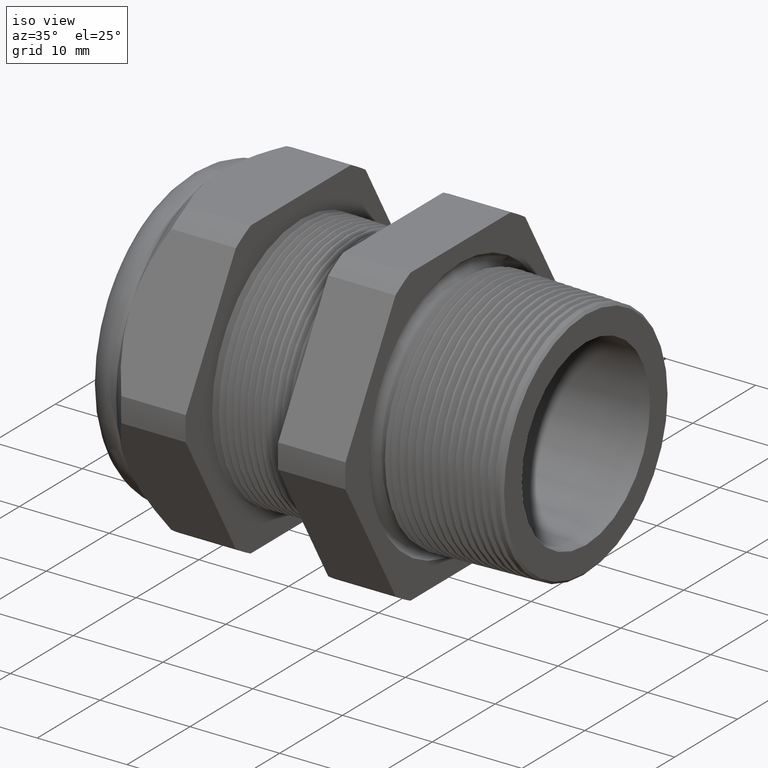
[diagram: clean part render]
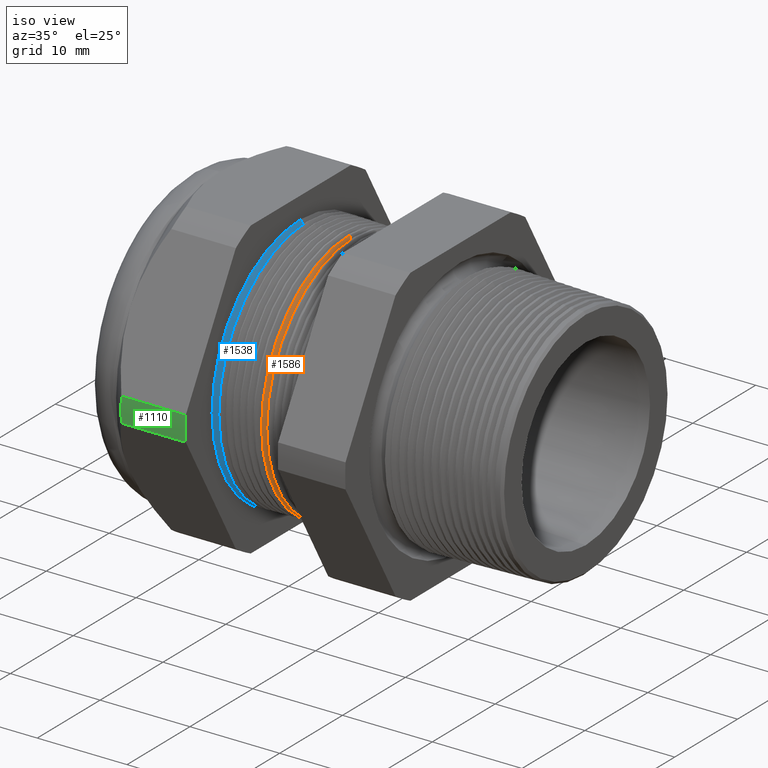
[diagram: same view with three faces highlighted in distinct colors, each labeled with its STEP entity id]
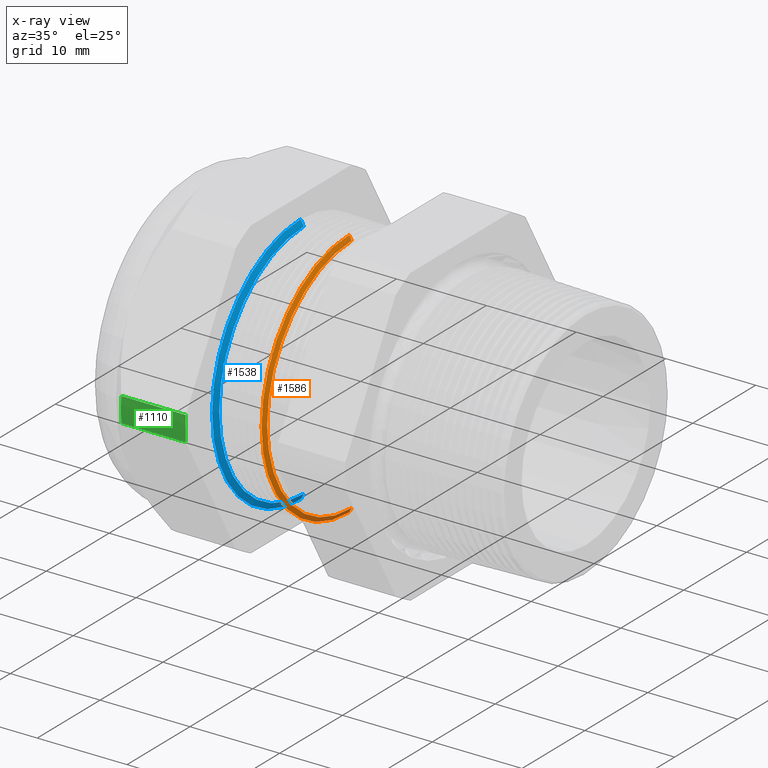
[diagram: x-ray of the same camera — body ghosted, the three highlighted faces saturated]
A machine part, iso view with three faces highlighted in distinct colors.
The next image is the same camera in x-ray (body ghosted, the three faces saturated) — at least one of them is partly hidden behind the body in this view.
Their STEP definitions:

[orange] entity #1586 — the highlighted conical surface has half-angle 61.5 deg.
#394 = VERTEX_POINT ( 'NONE', #2933 ) ;
#397 = VERTEX_POINT ( 'NONE', #2927 ) ;
#399 = EDGE_CURVE ( 'NONE', #410, #397, #2926, .T. ) ;
#409 = VERTEX_POINT ( 'NONE', #2964 ) ;
#410 = VERTEX_POINT ( 'NONE', #2963 ) ;
#476 = EDGE_CURVE ( 'NONE', #409, #394, #3107, .T. ) ;
#1053 = EDGE_CURVE ( 'NONE', #397, #394, #4195, .T. ) ;
#1586 = ADVANCED_FACE ( 'NONE', ( #5153 ), #5148, .T. ) ;
#1587 = EDGE_LOOP ( 'NONE', ( #1588, #1589, #1591, #1592 ) ) ;
#1588 = ORIENTED_EDGE ( 'NONE', *, *, #476, .F. ) ;
#1589 = ORIENTED_EDGE ( 'NONE', *, *, #1590, .F. ) ;
#1590 = EDGE_CURVE ( 'NONE', #410, #409, #5142, .T. ) ;
#1591 = ORIENTED_EDGE ( 'NONE', *, *, #399, .T. ) ;
#1592 = ORIENTED_EDGE ( 'NONE', *, *, #1053, .T. ) ;
#2923 = DIRECTION ( 'NONE',  ( -0.4771587602596191200, 0.0000000000000000000, 0.8788171126619595000 ) ) ;
#2924 = VECTOR ( 'NONE', #2923, 39.37007874015748100 ) ;
#2925 = CARTESIAN_POINT ( 'NONE',  ( -0.8003149606299214700, 0.0000000000000000000, 0.5550000000000000500 ) ) ;
#2926 = LINE ( 'NONE', #2925, #2924 ) ;
#2927 = CARTESIAN_POINT ( 'NONE',  ( -0.7972861607460501900, 0.0000000000000000000, 0.5494216445542645700 ) ) ;
#2933 = CARTESIAN_POINT ( 'NONE',  ( -0.7972861607460501900, 6.729599222564897900E-017, -0.5494216445542646800 ) ) ;
#2963 = CARTESIAN_POINT ( 'NONE',  ( -0.7865405736958173100, 0.0000000000000000000, 0.5296307351718083600 ) ) ;
#2964 = CARTESIAN_POINT ( 'NONE',  ( -0.7865405736958173100, 6.607290214719347400E-017, -0.5296307351718083600 ) ) ;
#3104 = DIRECTION ( 'NONE',  ( -0.4771587602596191200, 1.076240564057387800E-016, -0.8788171126619595000 ) ) ;
#3105 = VECTOR ( 'NONE', #3104, 39.37007874015748100 ) ;
#3106 = CARTESIAN_POINT ( 'NONE',  ( -0.8003149606299214700, 6.796789735267811300E-017, -0.5550000000000000500 ) ) ;
#3107 = LINE ( 'NONE', #3106, #3105 ) ;
#4192 = DIRECTION ( 'NONE',  ( 0.0000000000000000000, 0.0000000000000000000, 1.000000000000000000 ) ) ;
#4193 = DIRECTION ( 'NONE',  ( 1.000000000000000000, 0.0000000000000000000, 0.0000000000000000000 ) ) ;
#4194 = AXIS2_PLACEMENT_3D ( 'NONE', #4200, #4193, #4192 ) ;
#4195 = CIRCLE ( 'NONE', #4194, 0.5494216445542645700 ) ;
#4200 = CARTESIAN_POINT ( 'NONE',  ( -0.7972861607460501900, 0.0000000000000000000, 0.0000000000000000000 ) ) ;
#5139 = DIRECTION ( 'NONE',  ( 0.0000000000000000000, 0.0000000000000000000, -1.000000000000000000 ) ) ;
#5140 = DIRECTION ( 'NONE',  ( 1.000000000000000000, 0.0000000000000000000, 0.0000000000000000000 ) ) ;
#5141 = AXIS2_PLACEMENT_3D ( 'NONE', #5147, #5140, #5139 ) ;
#5142 = CIRCLE ( 'NONE', #5141, 0.5296307351718083600 ) ;
#5143 = DIRECTION ( 'NONE',  ( 0.0000000000000000000, 0.0000000000000000000, 1.000000000000000000 ) ) ;
#5144 = DIRECTION ( 'NONE',  ( -1.000000000000000000, 0.0000000000000000000, 0.0000000000000000000 ) ) ;
#5145 = CARTESIAN_POINT ( 'NONE',  ( -0.8003149606299214700, 0.0000000000000000000, 0.0000000000000000000 ) ) ;
#5146 = AXIS2_PLACEMENT_3D ( 'NONE', #5145, #5144, #5143 ) ;
#5147 = CARTESIAN_POINT ( 'NONE',  ( -0.7865405736958173100, 0.0000000000000000000, 0.0000000000000000000 ) ) ;
#5148 = CONICAL_SURFACE ( 'NONE', #5146, 0.5550000000000000500, 1.073377489976500500 ) ;
#5153 = FACE_OUTER_BOUND ( 'NONE', #1587, .T. ) ;

[blue] entity #1538 — the highlighted conical surface has half-angle 61.5 deg.
#564 = VERTEX_POINT ( 'NONE', #3300 ) ;
#565 = VERTEX_POINT ( 'NONE', #3299 ) ;
#628 = EDGE_CURVE ( 'NONE', #564, #629, #3373, .T. ) ;
#629 = VERTEX_POINT ( 'NONE', #3425 ) ;
#632 = VERTEX_POINT ( 'NONE', #3419 ) ;
#634 = EDGE_CURVE ( 'NONE', #565, #632, #3418, .T. ) ;
#1368 = EDGE_CURVE ( 'NONE', #632, #629, #4896, .T. ) ;
#1519 = ORIENTED_EDGE ( 'NONE', *, *, #634, .T. ) ;
#1520 = ORIENTED_EDGE ( 'NONE', *, *, #1368, .T. ) ;
#1538 = ADVANCED_FACE ( 'NONE', ( #5081 ), #5080, .T. ) ;
#1539 = EDGE_LOOP ( 'NONE', ( #1540, #1541, #1519, #1520 ) ) ;
#1540 = ORIENTED_EDGE ( 'NONE', *, *, #628, .F. ) ;
#1541 = ORIENTED_EDGE ( 'NONE', *, *, #1542, .F. ) ;
#1542 = EDGE_CURVE ( 'NONE', #565, #564, #5075, .T. ) ;
#3299 = CARTESIAN_POINT ( 'NONE',  ( -0.9965405736958173900, 0.0000000000000000000, 0.5296307351718083600 ) ) ;
#3300 = CARTESIAN_POINT ( 'NONE',  ( -0.9965405736958173900, 6.641447790424978500E-017, -0.5296307351718083600 ) ) ;
#3373 = LINE ( 'NONE', #3428, #3427 ) ;
#3415 = DIRECTION ( 'NONE',  ( -0.4771587602596191200, 0.0000000000000000000, 0.8788171126619595000 ) ) ;
#3416 = VECTOR ( 'NONE', #3415, 39.37007874015748100 ) ;
#3417 = CARTESIAN_POINT ( 'NONE',  ( -1.010314960629921500, 0.0000000000000000000, 0.5550000000000000500 ) ) ;
#3418 = LINE ( 'NONE', #3417, #3416 ) ;
#3419 = CARTESIAN_POINT ( 'NONE',  ( -1.010314960629921500, 0.0000000000000000000, 0.5550000000000000500 ) ) ;
#3425 = CARTESIAN_POINT ( 'NONE',  ( -1.010314960629921500, 6.796789735267811300E-017, -0.5550000000000000500 ) ) ;
#3426 = DIRECTION ( 'NONE',  ( -0.4771587602596191200, 1.076240564057387800E-016, -0.8788171126619595000 ) ) ;
#3427 = VECTOR ( 'NONE', #3426, 39.37007874015748100 ) ;
#3428 = CARTESIAN_POINT ( 'NONE',  ( -1.010314960629921500, 6.796789735267811300E-017, -0.5550000000000000500 ) ) ;
#4892 = DIRECTION ( 'NONE',  ( 0.0000000000000000000, 0.0000000000000000000, -1.000000000000000000 ) ) ;
#4893 = DIRECTION ( 'NONE',  ( 1.000000000000000000, 0.0000000000000000000, 0.0000000000000000000 ) ) ;
#4894 = CARTESIAN_POINT ( 'NONE',  ( -1.010314960629921500, 0.0000000000000000000, 0.0000000000000000000 ) ) ;
#4895 = AXIS2_PLACEMENT_3D ( 'NONE', #4894, #4893, #4892 ) ;
#4896 = CIRCLE ( 'NONE', #4895, 0.5550000000000000500 ) ;
#5072 = DIRECTION ( 'NONE',  ( 0.0000000000000000000, 0.0000000000000000000, -1.000000000000000000 ) ) ;
#5073 = DIRECTION ( 'NONE',  ( 1.000000000000000000, 0.0000000000000000000, 0.0000000000000000000 ) ) ;
#5074 = AXIS2_PLACEMENT_3D ( 'NONE', #5079, #5073, #5072 ) ;
#5075 = CIRCLE ( 'NONE', #5074, 0.5296307351718083600 ) ;
#5076 = DIRECTION ( 'NONE',  ( 0.0000000000000000000, 0.0000000000000000000, 1.000000000000000000 ) ) ;
#5077 = DIRECTION ( 'NONE',  ( -1.000000000000000000, 0.0000000000000000000, 0.0000000000000000000 ) ) ;
#5078 = AXIS2_PLACEMENT_3D ( 'NONE', #5085, #5077, #5076 ) ;
#5079 = CARTESIAN_POINT ( 'NONE',  ( -0.9965405736958173900, 0.0000000000000000000, 0.0000000000000000000 ) ) ;
#5080 = CONICAL_SURFACE ( 'NONE', #5078, 0.5550000000000000500, 1.073377489976500500 ) ;
#5081 = FACE_OUTER_BOUND ( 'NONE', #1539, .T. ) ;
#5085 = CARTESIAN_POINT ( 'NONE',  ( -1.010314960629921500, 0.0000000000000000000, 0.0000000000000000000 ) ) ;

[green] entity #1110 — the highlighted cylindrical surface (partial cylindrical patch) has radius 18.3261 mm, axis along (-1, 0, 0).
#1110 = ADVANCED_FACE ( 'NONE', ( #4328 ), #4327, .T. ) ;
#1111 = EDGE_LOOP ( 'NONE', ( #1167, #1171, #1173, #1174 ) ) ;
#1167 = ORIENTED_EDGE ( 'NONE', *, *, #1168, .T. ) ;
#1168 = EDGE_CURVE ( 'NONE', #1169, #1170, #4484, .T. ) ;
#1169 = VERTEX_POINT ( 'NONE', #4480 ) ;
#1170 = VERTEX_POINT ( 'NONE', #4479 ) ;
#1171 = ORIENTED_EDGE ( 'NONE', *, *, #1172, .T. ) ;
#1172 = EDGE_CURVE ( 'NONE', #1170, #1185, #4478, .T. ) ;
#1173 = ORIENTED_EDGE ( 'NONE', *, *, #1183, .F. ) ;
#1174 = ORIENTED_EDGE ( 'NONE', *, *, #1175, .F. ) ;
#1175 = EDGE_CURVE ( 'NONE', #1169, #1184, #4473, .T. ) ;
#1183 = EDGE_CURVE ( 'NONE', #1184, #1185, #4517, .T. ) ;
#1184 = VERTEX_POINT ( 'NONE', #4513 ) ;
#1185 = VERTEX_POINT ( 'NONE', #4512 ) ;
#4322 = DIRECTION ( 'NONE',  ( 0.0000000000000000000, 0.0000000000000000000, 1.000000000000000000 ) ) ;
#4323 = DIRECTION ( 'NONE',  ( -1.000000000000000000, 0.0000000000000000000, 0.0000000000000000000 ) ) ;
#4324 = CARTESIAN_POINT ( 'NONE',  ( 0.2400000000000001900, 0.0000000000000000000, 0.0000000000000000000 ) ) ;
#4325 = AXIS2_PLACEMENT_3D ( 'NONE', #4324, #4323, #4322 ) ;
#4327 = CYLINDRICAL_SURFACE ( 'NONE', #4325, 0.7215000000000000300 ) ;
#4328 = FACE_OUTER_BOUND ( 'NONE', #1111, .T. ) ;
#4469 = DIRECTION ( 'NONE',  ( 0.0000000000000000000, 0.0000000000000000000, -1.000000000000000000 ) ) ;
#4470 = DIRECTION ( 'NONE',  ( 1.000000000000000000, 0.0000000000000000000, 0.0000000000000000000 ) ) ;
#4471 = CARTESIAN_POINT ( 'NONE',  ( -1.010314960629920900, 0.0000000000000000000, 0.0000000000000000000 ) ) ;
#4472 = AXIS2_PLACEMENT_3D ( 'NONE', #4471, #4470, #4469 ) ;
#4473 = CIRCLE ( 'NONE', #4472, 0.7215000000000000300 ) ;
#4474 = DIRECTION ( 'NONE',  ( 0.0000000000000000000, 0.0000000000000000000, -1.000000000000000000 ) ) ;
#4475 = DIRECTION ( 'NONE',  ( 1.000000000000000000, 0.0000000000000000000, 0.0000000000000000000 ) ) ;
#4476 = CARTESIAN_POINT ( 'NONE',  ( -1.293145669291338600, 0.0000000000000000000, 0.0000000000000000000 ) ) ;
#4477 = AXIS2_PLACEMENT_3D ( 'NONE', #4476, #4475, #4474 ) ;
#4478 = CIRCLE ( 'NONE', #4477, 0.7215000000000000300 ) ;
#4479 = CARTESIAN_POINT ( 'NONE',  ( -1.293145669291338600, -0.7194909755756819800, 0.05380507471562098000 ) ) ;
#4480 = CARTESIAN_POINT ( 'NONE',  ( -1.010314960629920900, -0.7194909755756819800, 0.05380507471562089000 ) ) ;
#4481 = DIRECTION ( 'NONE',  ( -1.000000000000000000, 0.0000000000000000000, 0.0000000000000000000 ) ) ;
#4482 = VECTOR ( 'NONE', #4481, 39.37007874015748100 ) ;
#4483 = CARTESIAN_POINT ( 'NONE',  ( 0.2400000000000001900, -0.7194909755756819800, 0.05380507471562089000 ) ) ;
#4484 = LINE ( 'NONE', #4483, #4482 ) ;
#4512 = CARTESIAN_POINT ( 'NONE',  ( -1.293145669291338600, -0.7194909755756819800, -0.05380507471562080700 ) ) ;
#4513 = CARTESIAN_POINT ( 'NONE',  ( -1.010314960629920900, -0.7194909755756819800, -0.05380507471562080700 ) ) ;
#4514 = DIRECTION ( 'NONE',  ( -1.000000000000000000, 0.0000000000000000000, 0.0000000000000000000 ) ) ;
#4515 = VECTOR ( 'NONE', #4514, 39.37007874015748100 ) ;
#4516 = CARTESIAN_POINT ( 'NONE',  ( 0.2400000000000001900, -0.7194909755756819800, -0.05380507471562080700 ) ) ;
#4517 = LINE ( 'NONE', #4516, #4515 ) ;